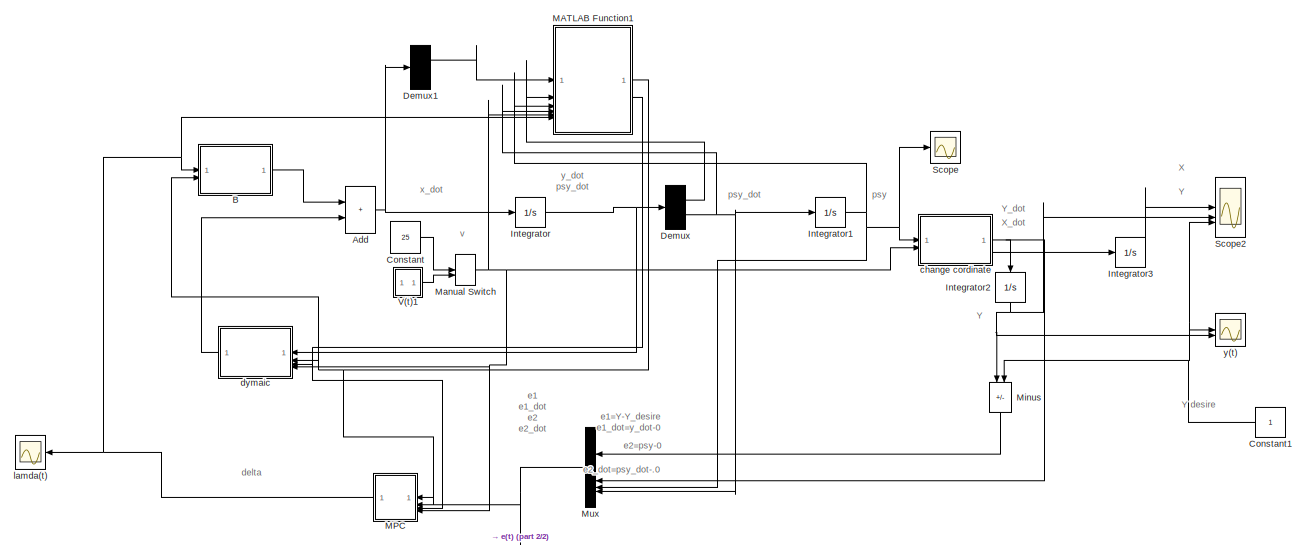
[diagram: root canvas - part 1/2, most of the canvas]
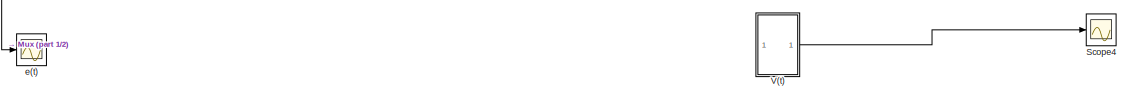
[diagram: root canvas - part 2/2, bottom center region]
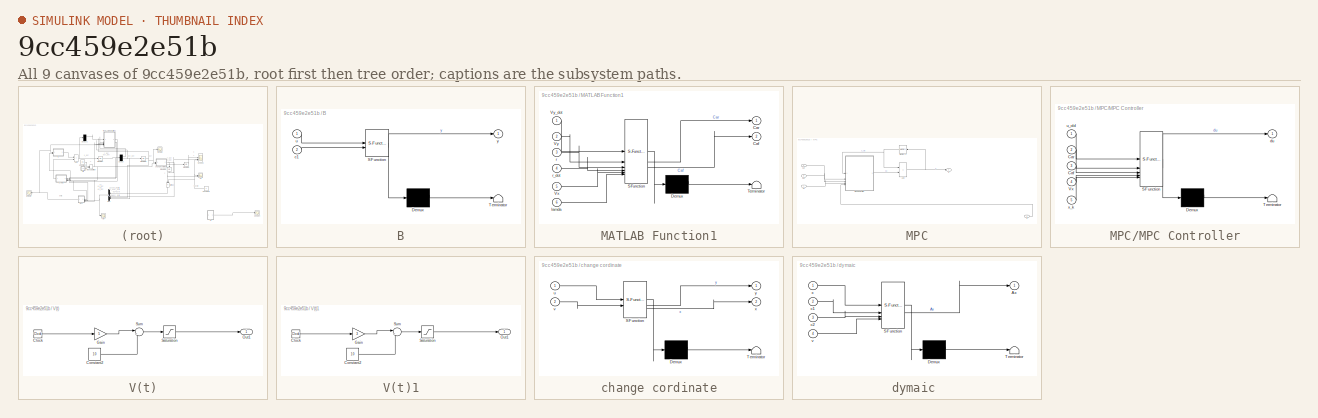
[diagram: thumbnail index - all 9 canvases of the model, root first then tree order]
MODEL slx_9cc459e2e51b
KIND model
CONFIG AbsTol = auto
CONFIG EnableMultiTasking = off
CONFIG FixedStep = 0.02
CONFIG MaxStep = auto
CONFIG MinStep = auto
CONFIG RelTol = 1e-3
CONFIG SampleTimeConstraint = Unconstrained
CONFIG SolverName = FixedStepAuto
CONFIG StartTime = 0.0
CONFIG StopTime = 10
BLOCK [Sum] Add
  IconShape = rectangular
BLOCK [SubSystem] B
  ErrorFcn = Stateflow.Translate.translate
  LibrarySourceBlock = simulink/User-Defined\nFunctions/MATLAB Function
  PermitHierarchicalResolution = ExplicitOnly
  SFBlockType = MATLAB Function
  TreatAsAtomicUnit = on
BLOCK [Demux] B/ Demux 
  Outputs = 1
BLOCK [S-Function] B/ SFunction 
  EnableBusSupport = on
  FunctionName = sf_sfun
  PortCounts = [2 2]
  SFcnIsStateOwnerBlock = off
  SFunctionDeploymentMode = off
  Tag = Stateflow S-Function 4
BLOCK [Terminator] B/ Terminator 
BLOCK [Inport] B/c1
  Port = 2
BLOCK [Inport] B/u
BLOCK [Outport] B/y
BLOCK [Constant] Constant
  Value = 25
BLOCK [Constant] Constant1
  NameLocation = top
BLOCK [Demux] Demux
  Outputs = 2
BLOCK [Demux] Demux1
  Outputs = 2
BLOCK [Integrator] Integrator
BLOCK [Integrator] Integrator1
BLOCK [Integrator] Integrator2
  NameLocation = left
BLOCK [Integrator] Integrator3
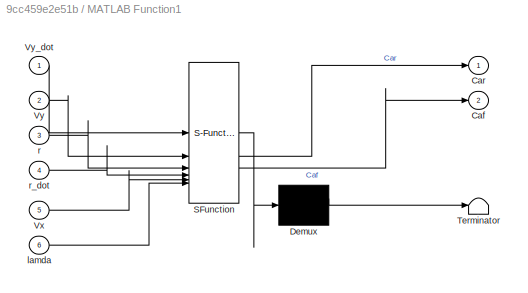
BLOCK [SubSystem] MATLAB Function1
  ErrorFcn = Stateflow.Translate.translate
  LibrarySourceBlock = simulink/User-Defined\nFunctions/MATLAB Function
  PermitHierarchicalResolution = ExplicitOnly
  SFBlockType = MATLAB Function
  TreatAsAtomicUnit = on
BLOCK [Demux] MATLAB Function1/ Demux 
  Outputs = 1
BLOCK [S-Function] MATLAB Function1/ SFunction 
  EnableBusSupport = on
  FunctionName = sf_sfun
  PortCounts = [6 3]
  SFcnIsStateOwnerBlock = off
  SFunctionDeploymentMode = off
  Tag = Stateflow S-Function 5
BLOCK [Terminator] MATLAB Function1/ Terminator 
BLOCK [Outport] MATLAB Function1/Caf
  Port = 2
BLOCK [Outport] MATLAB Function1/Car
BLOCK [Inport] MATLAB Function1/Vx
  Port = 5
BLOCK [Inport] MATLAB Function1/Vy
  Port = 2
BLOCK [Inport] MATLAB Function1/Vy_dot
BLOCK [Inport] MATLAB Function1/lamda
  Port = 6
BLOCK [Inport] MATLAB Function1/r
  Port = 3
BLOCK [Inport] MATLAB Function1/r_dot
  Port = 4
BLOCK [SubSystem] MPC
  NameLocation = top
BLOCK [Sum] MPC/Add
  IconShape = rectangular
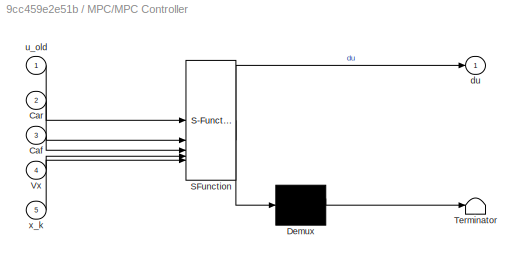
BLOCK [SubSystem] MPC/MPC Controller
  ErrorFcn = Stateflow.Translate.translate
  PermitHierarchicalResolution = ExplicitOnly
  SFBlockType = MATLAB Function
  TreatAsAtomicUnit = on
BLOCK [Demux] MPC/MPC Controller/ Demux 
  Outputs = 1
BLOCK [S-Function] MPC/MPC Controller/ SFunction 
  EnableBusSupport = on
  FunctionName = sf_sfun
  PortCounts = [5 2]
  SFcnIsStateOwnerBlock = off
  SFunctionDeploymentMode = off
  Tag = Stateflow S-Function 3
BLOCK [Terminator] MPC/MPC Controller/ Terminator 
BLOCK [Inport] MPC/MPC Controller/Caf
  Port = 3
BLOCK [Inport] MPC/MPC Controller/Car
  Port = 2
BLOCK [Inport] MPC/MPC Controller/Vx
  Port = 4
BLOCK [Outport] MPC/MPC Controller/du
  VectorParamsAs1DForOutWhenUnconnected = off
BLOCK [Inport] MPC/MPC Controller/u_old
BLOCK [Inport] MPC/MPC Controller/x_k
  Port = 5
BLOCK [Memory] MPC/Memory1
BLOCK [Inport] MPC/Vx
  Port = 4
BLOCK [Inport] MPC/caf
  Port = 3
BLOCK [Inport] MPC/car
BLOCK [Outport] MPC/u
BLOCK [Inport] MPC/x
  Port = 2
BLOCK [ManualSwitch] Manual Switch
BLOCK [Sum] Minus
  IconShape = rectangular
  Inputs = +-
  NameLocation = left
BLOCK [Mux] Mux
  DisplayOption = bar
BLOCK [Scope] Scope
  Floating = off
  NumInputPorts = 1
  ScopeSpecificationString = Simulink.scopes.TimeScopeBlockCfg('CurrentConfiguration', extmgr.ConfigurationSet(extmgr.Configuration('Core','General UI',true),extmgr.Configuration('Core','Source UI',true),extmgr.Configuration('Sources','WiredSimulink',true,'DataLoggingVariableName','ScopeData1'),extmgr.Configuration('Visuals','Time Domain',true,'SerializedDisplays',{struct('MinYLimReal','-0.01176','MaxYLimReal','0.10556','YLab...<+1397ch>
BLOCK [Scope] Scope2
  Floating = off
  NumInputPorts = 3
  ScopeSpecificationString = Simulink.scopes.TimeScopeBlockCfg('CurrentConfiguration', extmgr.ConfigurationSet(extmgr.Configuration('Core','General UI',true),extmgr.Configuration('Core','Source UI',true),extmgr.Configuration('Sources','WiredSimulink',true,'DataLoggingVariableName','ScopeData1','DataLogging',true,'DataLoggingSaveFormat','Structure'),extmgr.Configuration('Visuals','Time Domain',true,'SerializedDisplays',{struct...<+2153ch>
BLOCK [Scope] Scope4
  Floating = off
  NumInputPorts = 1
  ScopeSpecificationString = Simulink.scopes.TimeScopeBlockCfg('CurrentConfiguration', extmgr.ConfigurationSet(extmgr.Configuration('Core','General UI',true),extmgr.Configuration('Core','Source UI',true),extmgr.Configuration('Sources','WiredSimulink',true,'DataLoggingVariableName','ScopeData4'),extmgr.Configuration('Visuals','Time Domain',true,'SerializedDisplays',{struct('MinYLimReal','7.5','MaxYLimReal','32.5','YLabelReal',...<+1333ch>
BLOCK [SubSystem] V(t)
BLOCK [Clock] V(t)/Clock
BLOCK [Constant] V(t)/Constant2
  Value = 10
BLOCK [Gain] V(t)/Gain
  Gain = 5
BLOCK [Outport] V(t)/Out1
BLOCK [Saturate] V(t)/Saturation
  LowerLimit = 10
  UpperLimit = 30
BLOCK [Sum] V(t)/Sum
  Inputs = |++
BLOCK [SubSystem] V(t)1
BLOCK [Clock] V(t)1/Clock
BLOCK [Constant] V(t)1/Constant2
  Value = 10
BLOCK [Gain] V(t)1/Gain
  Gain = 3
BLOCK [Outport] V(t)1/Out1
BLOCK [Saturate] V(t)1/Saturation
  LowerLimit = 10
  UpperLimit = 30
BLOCK [Sum] V(t)1/Sum
  Inputs = |++
BLOCK [SubSystem] change cordinate
  ErrorFcn = Stateflow.Translate.translate
  LibrarySourceBlock = simulink/User-Defined\nFunctions/MATLAB Function
  PermitHierarchicalResolution = ExplicitOnly
  SFBlockType = MATLAB Function
  TreatAsAtomicUnit = on
BLOCK [Demux] change cordinate/ Demux 
  Outputs = 1
BLOCK [S-Function] change cordinate/ SFunction 
  EnableBusSupport = on
  FunctionName = sf_sfun
  PortCounts = [2 3]
  SFcnIsStateOwnerBlock = off
  SFunctionDeploymentMode = off
  Tag = Stateflow S-Function 2
BLOCK [Terminator] change cordinate/ Terminator 
BLOCK [Inport] change cordinate/u
BLOCK [Inport] change cordinate/v
  Port = 2
BLOCK [Outport] change cordinate/x
  Port = 2
BLOCK [Outport] change cordinate/y
BLOCK [SubSystem] dymaic 
  ErrorFcn = Stateflow.Translate.translate
  LibrarySourceBlock = simulink/User-Defined\nFunctions/MATLAB Function
  PermitHierarchicalResolution = ExplicitOnly
  SFBlockType = MATLAB Function
  TreatAsAtomicUnit = on
BLOCK [Demux] dymaic / Demux 
  Outputs = 1
BLOCK [S-Function] dymaic / SFunction 
  EnableBusSupport = on
  FunctionName = sf_sfun
  PortCounts = [4 2]
  SFcnIsStateOwnerBlock = off
  SFunctionDeploymentMode = off
  Tag = Stateflow S-Function 1
BLOCK [Terminator] dymaic / Terminator 
BLOCK [Outport] dymaic /Ax
BLOCK [Inport] dymaic /c1
  Port = 2
BLOCK [Inport] dymaic /c2
  Port = 3
BLOCK [Inport] dymaic /v
  Port = 4
BLOCK [Inport] dymaic /x
BLOCK [Scope] e(t)
  Floating = off
  NumInputPorts = 1
  ScopeSpecificationString = Simulink.scopes.TimeScopeBlockCfg('CurrentConfiguration', extmgr.ConfigurationSet(extmgr.Configuration('Core','General UI',true),extmgr.Configuration('Core','Source UI',true),extmgr.Configuration('Sources','WiredSimulink',true,'DataLoggingVariableName','ScopeData5'),extmgr.Configuration('Visuals','Time Domain',true,'SerializedDisplays',{struct('MinYLimReal','-1.25096','MaxYLimReal','1.25866','YLab...<+1436ch>
BLOCK [Scope] lamda(t)
  Floating = off
  NumInputPorts = 1
  ScopeSpecificationString = Simulink.scopes.TimeScopeBlockCfg('CurrentConfiguration', extmgr.ConfigurationSet(extmgr.Configuration('Core','General UI',true),extmgr.Configuration('Core','Source UI',true),extmgr.Configuration('Sources','WiredSimulink',true,'DataLoggingVariableName','ScopeData1'),extmgr.Configuration('Visuals','Time Domain',true,'SerializedDisplays',{struct('MinYLimReal','-4.93374','MaxYLimReal','1.69879','YLab...<+1467ch>
BLOCK [Scope] y(t)
  Floating = off
  NumInputPorts = 2
  ScopeSpecificationString = Simulink.scopes.TimeScopeBlockCfg('CurrentConfiguration', extmgr.ConfigurationSet(extmgr.Configuration('Core','General UI',true),extmgr.Configuration('Core','Source UI',true),extmgr.Configuration('Sources','WiredSimulink',true),extmgr.Configuration('Visuals','Time Domain',true,'SerializedDisplays',{struct('MinYLimReal','-0.01631','MaxYLimReal','1.29361','YLabelReal','','MinYLimMag','0.00000','MaxY...<+1414ch>
ANNOTATION (root): y_dot psy_dot
ANNOTATION (root): X
ANNOTATION (root): X_dot
ANNOTATION (root): Y
ANNOTATION (root): Y desire
ANNOTATION (root): Y_dot
ANNOTATION (root): delta
ANNOTATION (root): e1 e1_dot e2 e2_dot
ANNOTATION (root): e1=Y-Y_desire
ANNOTATION (root): e1_dot=y_dot-0
ANNOTATION (root): e2=psy-0
ANNOTATION (root): e2_dot=psy_dot-.0
ANNOTATION (root): psy
ANNOTATION (root): psy_dot
ANNOTATION (root): v
ANNOTATION (root): x_dot
NET Add:1 -> Demux1:1, Integrator:1
LINE B:1 -> Add:1
NET Constant1:1 -> Minus:2, Scope2:3, y(t):1
LINE Constant:1 -> Manual Switch:1
LINE Demux1:1 -> MATLAB Function1:1
LINE Demux:1 -> MATLAB Function1:2
NET Demux:2 -> Integrator1:1, MATLAB Function1:4, Mux:4
NET Integrator1:1 -> MATLAB Function1:3, Mux:3, Scope:1, change cordinate:1
NET Integrator2:1 -> Minus:1, Scope2:2, y(t):2
LINE Integrator3:1 -> Scope2:1
NET Integrator:1 -> Demux:1, dymaic :1
NET MATLAB Function1:1 -> B:2, MPC:1, dymaic :2
NET MATLAB Function1:2 -> MPC:3, dymaic :3
NET MPC/Add:1 -> MPC/Memory1:1, MPC/u:1
LINE MPC/MPC Controller:1 -> MPC/Add:2
NET MPC/Memory1:1 -> MPC/Add:1, MPC/MPC Controller:1
LINE MPC/Vx:1 -> MPC/MPC Controller:4
LINE MPC/caf:1 -> MPC/MPC Controller:3
LINE MPC/car:1 -> MPC/MPC Controller:2
LINE MPC/x:1 -> MPC/MPC Controller:5
NET MPC:1 -> B:1, MATLAB Function1:6, lamda(t):1
NET Manual Switch:1 -> MATLAB Function1:5, MPC:4, change cordinate:2, dymaic :4
LINE Minus:1 -> Mux:1
NET Mux:1 -> MPC:2, e(t):1
LINE V(t)/Clock:1 -> V(t)/Gain:1
LINE V(t)/Constant2:1 -> V(t)/Sum:2
LINE V(t)/Gain:1 -> V(t)/Sum:1
LINE V(t)/Saturation:1 -> V(t)/Out1:1
LINE V(t)/Sum:1 -> V(t)/Saturation:1
LINE V(t)1/Clock:1 -> V(t)1/Gain:1
LINE V(t)1/Constant2:1 -> V(t)1/Sum:2
LINE V(t)1/Gain:1 -> V(t)1/Sum:1
LINE V(t)1/Saturation:1 -> V(t)1/Out1:1
LINE V(t)1/Sum:1 -> V(t)1/Saturation:1
LINE V(t)1:1 -> Manual Switch:2
LINE V(t):1 -> Scope4:1
NET change cordinate:1 -> Integrator2:1, Mux:2
LINE change cordinate:2 -> Integrator3:1
LINE dymaic :1 -> Add:2
note: NET lines group one-source signal fan-out (src -> all destinations, sorted); 1:1 wires keep LINE
CHART dymaic  states=1 transitions=1
  STATE_LABEL 'eML_blk_kernel()'
  STATE_LABEL 'SCRIPT:\nfunction Ax = fcn(x,c1,c2,v)\n%matrix data\nm=1734;%[kg]\na=1.422;%[m]\nb=1.303;%[m]\nI_z=1900;%[kg/m^2]\nA_11=-(c1+c2)/(m*v);\nA_12=-(v+(a*c1-b*c2)/(m*v));\nA_21=-(a*c1-b*c2)/(I_z*v);\nA_22=-(a^2*c1+b^2*c2)/(I_z*v);\n\nA=[A_11,A_12;\n    A_21,A_22];\nAx = A*x;\n'
CHART change cordinate states=1 transitions=1
  STATE_LABEL 'eML_blk_kernel()'
  STATE_LABEL 'SCRIPT:\nfunction [y,x]= fcn(u,v)\nx=v*cos(u);\ny = v*sin(u);\n'
CHART MPC/MPC Controller states=1 transitions=1
  STATE_LABEL 'eML_blk_kernel()'
  STATE_LABEL 'SCRIPT:\nfunction du = fcn(u_old,Car ,Caf,Vx, x_k)\n\ndu=0; % set output dimentions\n\n%% 1. System Model (function of Vx)\nm=1734; Iz=1900;\nlr=1.422; lf=1.303; lh=7;\n\n\n%%% State Space model\nA_22=-2*(Caf+Car)/(m*Vx);\nA_23= 2*(Caf+Car)/m;\nA_24=-2*(Caf*lf-Car*lr)/(m*Vx);\nA_42=-2*(Caf*lf-Car*lr)/(Iz*Vx);\nA_43= 2*(Caf*lf-Car*lr)/Iz;\nA_44=-2*(-Caf*((lf)^2)+Car*((lr)^2))/(Iz*Vx);\n\nB1_2=2*Caf/m;\nB1_4=2*Caf*lf/...<+1314ch>'
CHART B states=1 transitions=1
  STATE_LABEL 'eML_blk_kernel()'
  STATE_LABEL 'SCRIPT:\nfunction y = fcn(u,c1)\na=1.422; %[m]\ni_z=1900;\nm=1734;%[kg]\nB1=2*c1/m;\nB2=(2*c1*a)/i_z;\nB=[B1;B2];\ny = B*u;\n'
CHART MATLAB Function1 states=1 transitions=1
  STATE_LABEL 'eML_blk_kernel()'
  STATE_LABEL 'SCRIPT:\nfunction [Car,Caf]= fcn(Vy_dot,Vy,r,r_dot,Vx,lamda)\na=1.422;\nb=1.303;\nm=1734;\nl=a+b;\ni_zz=1900;\nCaf = ((b*Vy_dot*m+b*r*m*Vx+i_zz*r_dot)/l)/((-Vy-r*a+lamda*Vx)/Vx);\nCar=((a*r*m*Vx+a*Vy_dot*a*m-i_zz*r_dot)/l)/((r*b-Vy)/Vx);'
CHART  states=0 transitions=0
CHART  states=0 transitions=0
CHART  states=0 transitions=0
CHART  states=0 transitions=0
CHART  states=0 transitions=0
